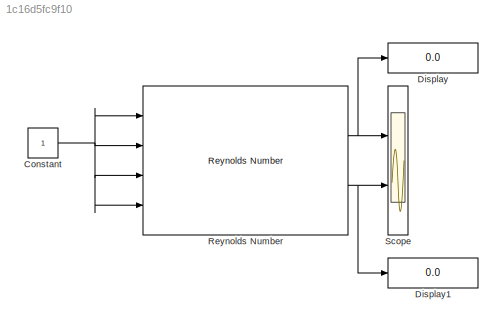
MODEL slx_1c16d5fc9f10
KIND model
BLOCK [Constant] Constant
BLOCK [Display] Display
  Decimation = 1
  Ports = [1]
BLOCK [Display] Display1
  Decimation = 1
  Ports = [1]
BLOCK [Reference] Reynolds Number  REF=rocket_drag_library/Reynolds Number  (lib defined in slx_51275aa4cfd2)
  Ports = [4, 2]
  SourceBlock = rocket_drag_library/Reynolds Number
  SourceType = SubSystem
BLOCK [Scope] Scope
  DataFormat = StructureWithTime
  Floating = off
  NumInputPorts = 2
  Ports = [2]
  SampleTime = 0
  ShowLegends = off
  YMax = 5~5
  YMin = -5~-5
NET Constant:1 -> Reynolds Number:1, Reynolds Number:2, Reynolds Number:3, Reynolds Number:4
NET Reynolds Number:1 -> Display:1, Scope:1
NET Reynolds Number:2 -> Display1:1, Scope:2
note: NET lines group one-source signal fan-out (src -> all destinations, sorted); 1:1 wires keep LINE
